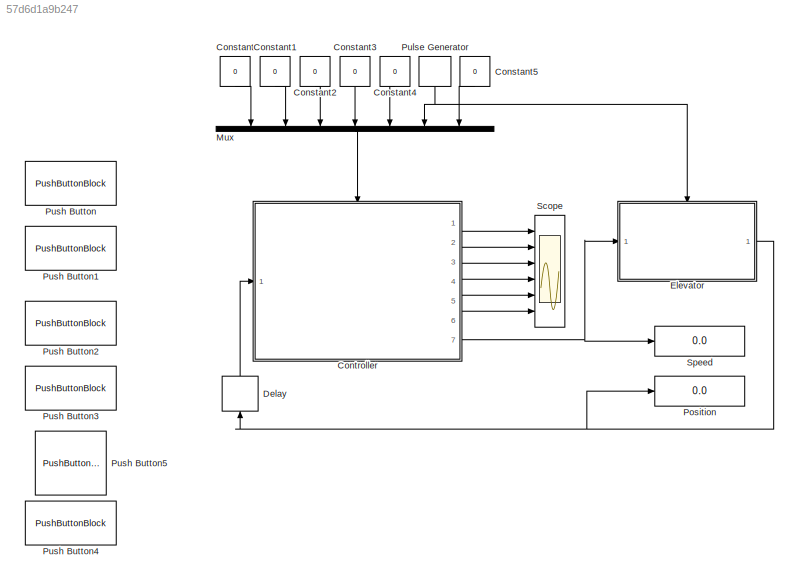
MODEL slx_57d6d1a9b247
KIND model
CONFIG AbsTol = auto
CONFIG EnableMultiTasking = off
CONFIG FixedStep = auto
CONFIG MaxStep = auto
CONFIG MinStep = auto
CONFIG RelTol = 1e-3
CONFIG SampleTimeConstraint = Unconstrained
CONFIG Solver = VariableStepAuto
CONFIG SolverName = VariableStepAuto
CONFIG StartTime = 0.0
CONFIG StopTime = 40000
BLOCK [Constant] Constant
  NameLocation = left
  Value = 0
BLOCK [Constant] Constant1
  NameLocation = left
  Value = 0
BLOCK [Constant] Constant2
  NameLocation = left
  Value = 0
BLOCK [Constant] Constant3
  NameLocation = left
  Value = 0
BLOCK [Constant] Constant4
  NameLocation = left
  Value = 0
BLOCK [Constant] Constant5
  NameLocation = left
  Value = 0
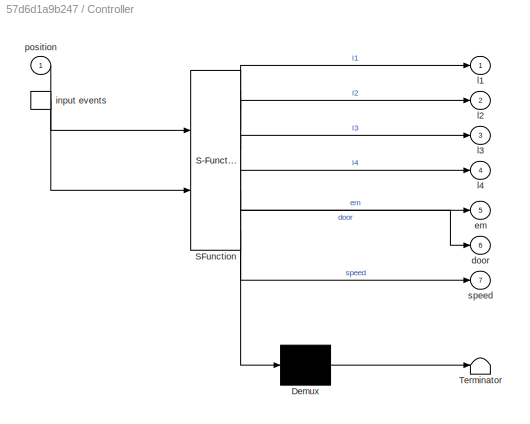
BLOCK [SubSystem] Controller
  ErrorFcn = Stateflow.Translate.translate
  PermitHierarchicalResolution = ExplicitOnly
  Ports = [1, 7, 0, 1]
  RequestExecContextInheritance = off
  SFBlockType = Chart
  TreatAsAtomicUnit = on
BLOCK [Demux] Controller/ Demux 
  Outputs = 1
  Ports = [1, 1]
BLOCK [S-Function] Controller/ SFunction 
  EnableBusSupport = on
  FunctionName = sf_sfun
  PortCounts = [2 8]
  Ports = [2, 8]
  SFcnIsStateOwnerBlock = off
  SFunctionDeploymentMode = off
  Tag = Stateflow S-Function 3
BLOCK [Terminator] Controller/ Terminator 
BLOCK [Outport] Controller/door
  Port = 6
BLOCK [Outport] Controller/em
  Port = 5
BLOCK [TriggerPort] Controller/input events
  Ports = [0, 1]
  ShowOutputPort = on
  StatesWhenEnabling = held
  TriggerType = either
  VariantControl = (inherit)
BLOCK [Outport] Controller/l1
BLOCK [Outport] Controller/l2
  Port = 2
BLOCK [Outport] Controller/l3
  Port = 3
BLOCK [Outport] Controller/l4
  Port = 4
BLOCK [Inport] Controller/position
BLOCK [Outport] Controller/speed
  Port = 7
BLOCK [Delay] Delay
  DelayLength = 1
  DelayLengthUpperLimit = 2
  InputPortMap = u0
  InputProcessing = Columns as channels (frame based)
  NameLocation = right
  Ports = [1, 1]
  SampleTime = 1
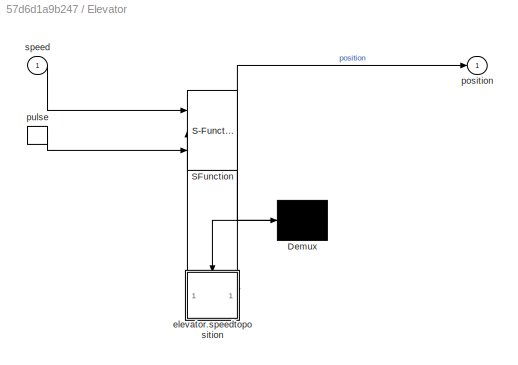
BLOCK [SubSystem] Elevator
  ErrorFcn = Stateflow.Translate.translate
  PermitHierarchicalResolution = ExplicitOnly
  Ports = [1, 1, 0, 1]
  RequestExecContextInheritance = off
  SFBlockType = Chart
  TreatAsAtomicUnit = on
BLOCK [Demux] Elevator/ Demux 
  Outputs = 1
  Ports = [1, 1]
BLOCK [S-Function] Elevator/ SFunction 
  EnableBusSupport = on
  FunctionName = sf_sfun
  PortCounts = [3 3]
  Ports = [3, 3]
  SFcnIsStateOwnerBlock = off
  SFunctionDeploymentMode = off
  Tag = Stateflow S-Function 1
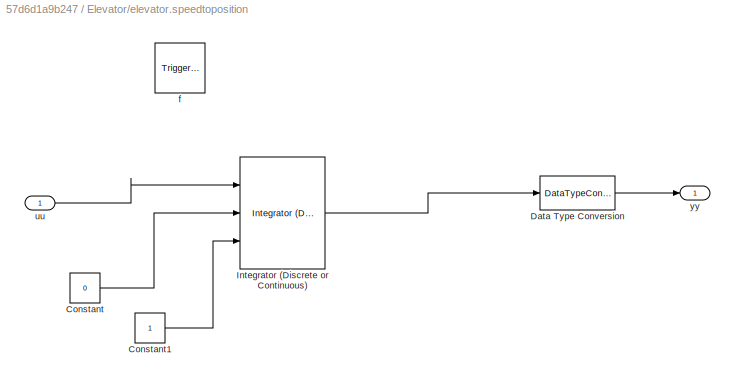
BLOCK [SubSystem] Elevator/elevator.speedtoposition
  Ports = [1, 1, 0, 1]
  PreDeleteFcn = Stateflow.SLINSF.SimulinkMan.removePreDeleteFcn
  RequestExecContextInheritance = off
  UndoDeleteFcn = Stateflow.SLINSF.SimulinkMan.restorePreDeleteFcn
BLOCK [Constant] Elevator/elevator.speedtoposition/Constant
  Value = 0
BLOCK [Constant] Elevator/elevator.speedtoposition/Constant1
BLOCK [DataTypeConversion] Elevator/elevator.speedtoposition/Data Type Conversion
  OutDataTypeStr = int8
  RndMeth = Round
  SaturateOnIntegerOverflow = off
BLOCK [Reference] Elevator/elevator.speedtoposition/Integrator (Discrete or Continuous)  REF=eeGeneralControl/Integrator
(Discrete or Continuous)
  Ports = [3, 1]
  SourceBlock = eeGeneralControl/Integrator\n(Discrete or Continuous)
  SourceProductBaseCode = PS
  SourceType = Integrator (Discrete or Continuous)
BLOCK [TriggerPort] Elevator/elevator.speedtoposition/f
  CopyFcn = Stateflow.SLINSF.SimulinkMan.removeBlockPreDeleteFcn
  Ports = []
  PreDeleteFcn = Stateflow.SLINSF.SimulinkMan.unsafePredeleteFcn
  StatesWhenEnabling = held
  TriggerType = function-call
  VariantControl = (inherit)
BLOCK [Inport] Elevator/elevator.speedtoposition/uu
  OutDataTypeStr = double
  PortDimensions = 1
  SignalType = real
  VarSizeSig = No
BLOCK [Outport] Elevator/elevator.speedtoposition/yy
BLOCK [Outport] Elevator/position
BLOCK [TriggerPort] Elevator/pulse
  Ports = [0, 1]
  ShowOutputPort = on
  StatesWhenEnabling = held
  TriggerType = either
  VariantControl = (inherit)
BLOCK [Inport] Elevator/speed
BLOCK [Mux] Mux
  DisplayOption = bar
  Inputs = 7
  NameLocation = left
  Ports = [7, 1]
BLOCK [Display] Position
  Decimation = 1
  Ports = [1]
BLOCK [DiscretePulseGenerator] Pulse Generator
  NameLocation = left
  Period = 1
  Ports = [0, 1]
  PulseType = Time based
  PulseWidth = 99
BLOCK [PushButtonBlock] Push Button
  ButtonText = Floor_1
BLOCK [PushButtonBlock] Push Button1
  ButtonText = Floor_2
BLOCK [PushButtonBlock] Push Button2
  ButtonText = Floor_3
BLOCK [PushButtonBlock] Push Button3
  ButtonText = Floor_4
BLOCK [PushButtonBlock] Push Button4
  ButtonText = Emergency
BLOCK [PushButtonBlock] Push Button5
  ButtonText = Reset
BLOCK [Scope] Scope
  Floating = off
  NumInputPorts = 6
  Ports = [6]
  ScopeSpecificationString = Simulink.scopes.TimeScopeBlockCfg('CurrentConfiguration', extmgr.ConfigurationSet(extmgr.Configuration('Core','General UI',true),extmgr.Configuration('Core','Source UI',true),extmgr.Configuration('Sources','WiredSimulink',true),extmgr.Configuration('Visuals','Time Domain',true,'SerializedDisplays',{struct('MinYLimReal','-0.125','MaxYLimReal','1.125','YLabelReal','','MinYLimMag','0.00000','MaxYLimM...<+1611ch>
BLOCK [Display] Speed
  Decimation = 1
  Ports = [1]
LINE Constant1:1 -> Mux:2
LINE Constant2:1 -> Mux:3
LINE Constant3:1 -> Mux:4
LINE Constant4:1 -> Mux:5
LINE Constant5:1 -> Mux:7
LINE Constant:1 -> Mux:1
LINE Controller:1 -> Scope:1
LINE Controller:2 -> Scope:2
LINE Controller:3 -> Scope:3
LINE Controller:4 -> Scope:4
LINE Controller:5 -> Scope:5
LINE Controller:6 -> Scope:6
NET Controller:7 -> Elevator:1, Speed:1
LINE Delay:1 -> Controller:1
NET Elevator:1 -> Delay:1, Position:1
LINE Mux:1 -> Controller:trigger
NET Pulse Generator:1 -> Elevator:trigger, Mux:6
note: NET lines group one-source signal fan-out (src -> all destinations, sorted); 1:1 wires keep LINE
CHART Elevator states=2 transitions=1
  STATE_LABEL 'elevator\nen, du: position=speedtoposition(speed)\n'
  STATE_LABEL 'yy = speedtoposition(uu)'
  STATE_LABEL 'yy = speedtoposition(uu)'
CHART Controller states=14 transitions=20
  STATE_LABEL 'controller\nen: em=0; go1=0; go2=0; go3=0; go4=0; door=0;reached=0;t=0; l1=0;l2=0;l3=0;l4=0;\non Floor_1:  go1=1;l1=1;\non Floor_2:  go2=1;l2=1;\non Floor_3:  go3=1;l3=1;\non Floor_4:  go4=1;l4=1;\non emergency: em=1;\non restart: em=0;\nen, du: controllerlogic();\nduring: ml.lift_fig(position,l1,l2,l3,l4,em,door);\n'
  STATE_LABEL 'controllerlogic'
  STATE_LABEL 'SCRIPT:\nfunction controllerlogic\nmax_speed= 0.2;\ncurrent_floor= round(position);\n% destination_floor= 1;\n% go=1;\n\nif em == 0 && go1==1\n    destination_floor= 1;\n        if destination_floor-current_floor==0\n            speed= 0;\n            go1=0;\n        elseif destination_floor-current_floor> 0\n            speed= max_speed;          \n        elseif destination_floor-(current_floor+1)< 0\n        ...<+1442ch>'
  STATE_LABEL 'floor3\n'
  STATE_LABEL 'closed\ndu:door=0;'
  STATE_LABEL 'open\nen,du: door=1;l3=0;\nen,du: t=elapsed(sec);\nexit: door=0;go3=0;'
  STATE_LABEL '[t>=5]'
  STATE_LABEL '[l3==1]'
  STATE_LABEL 'floor2\n\n'
  STATE_LABEL 'closed\ndu:door=0;'
  STATE_LABEL 'open\nen,du: door=1;l2=0;\nen,du: t=elapsed(sec);\nexit: door=0;go2=0;'
  STATE_LABEL '[t>=5]'
  STATE_LABEL '[l2==1]'
  STATE_LABEL 'floor4\n\n'
  STATE_LABEL 'closed\ndu:door=0;'
  STATE_LABEL 'open\nen,du: door=1;l4=0;\nen,du: t=elapsed(sec);\nexit: door=0;go4=0;'
  STATE_LABEL '[t>=5]'
  STATE_LABEL '[l4==1]'
  STATE_LABEL 'floor1\n'
  STATE_LABEL 'closed\ndu:door=0;'
  STATE_LABEL 'open\nen,du: door=1;l1=0;\nen,du: t=elapsed(sec);\nexit: door=0;go1=0;'
  STATE_LABEL '[t>=5]'
  STATE_LABEL '[l1==1]'
  STATE_LABEL '[position==2]'
  STATE_LABEL '[position==3]'
  STATE_LABEL '[position==1]'
  STATE_LABEL '[position==2]'
  STATE_LABEL '[position==3]'
  STATE_LABEL '[position==4]'
  STATE_LABEL 'controllerlogic'
  STATE_LABEL 'SCRIPT:\nfunction controllerlogic\nmax_speed= 0.2;\ncurrent_floor= round(position);\n% destination_floor= 1;\n% go=1;\n\nif em == 0 && go1==1\n    destination_floor= 1;\n        if destination_floor-current_floor==0\n            speed= 0;\n            go1=0;\n        elseif destination_floor-current_floor> 0\n            speed= max_speed;          \n        elseif destination_floor-(current_floor+1)< 0\n        ...<+1442ch>'
  STATE_LABEL 'floor3\n'
  STATE_LABEL 'closed\ndu:door=0;'
  STATE_LABEL 'open\nen,du: door=1;l3=0;\nen,du: t=elapsed(sec);\nexit: door=0;go3=0;'
  STATE_LABEL '[t>=5]'
  STATE_LABEL '[l3==1]'
  STATE_LABEL 'closed\ndu:door=0;'
  STATE_LABEL 'open\nen,du: door=1;l3=0;\nen,du: t=elapsed(sec);\nexit: door=0;go3=0;'
  STATE_LABEL 'floor2\n\n'
  STATE_LABEL 'closed\ndu:door=0;'
CHART  states=0 transitions=0
CHART  states=0 transitions=0
